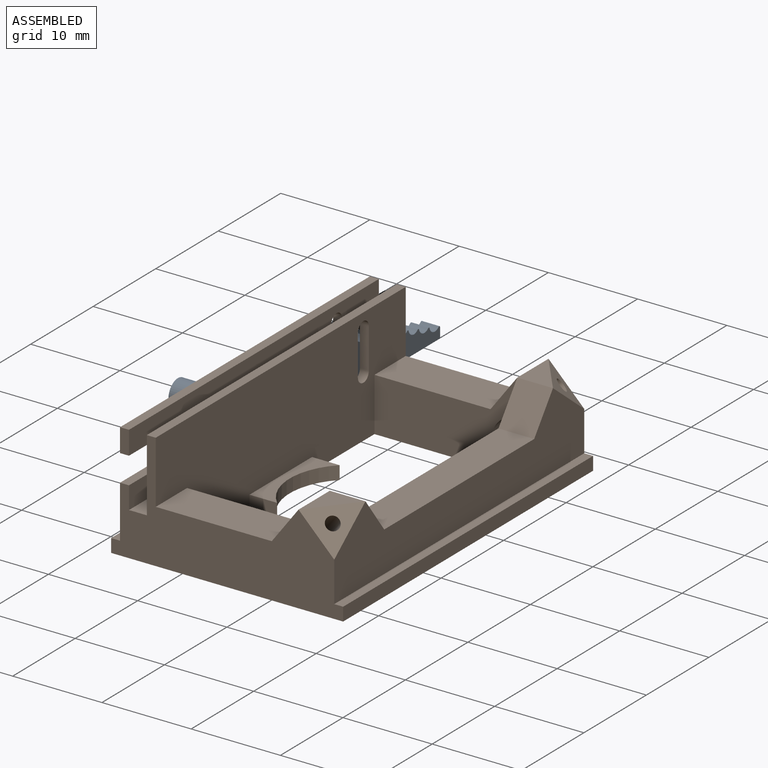
[diagram: assembled view]
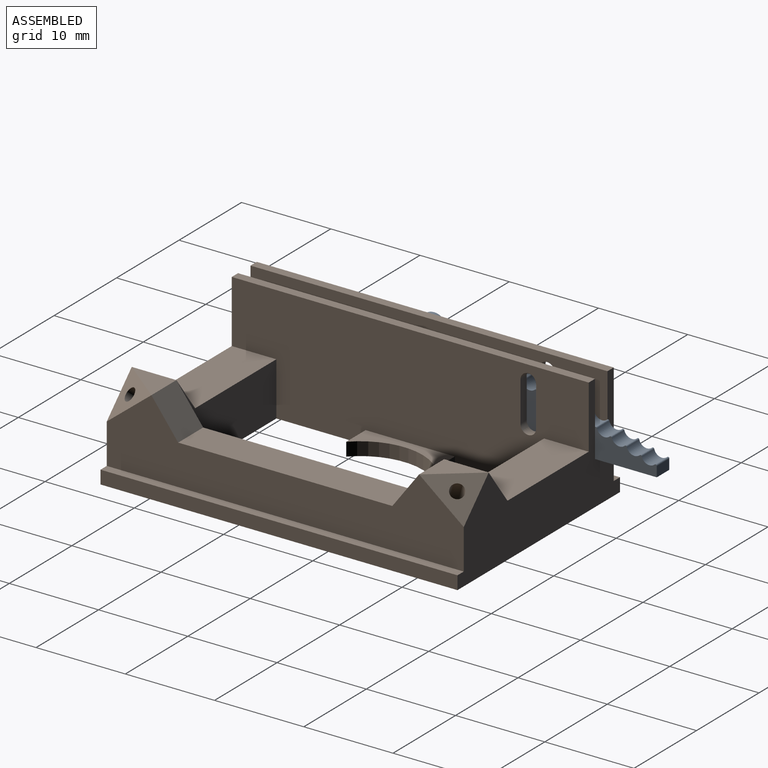
[diagram: assembled view, second angle]
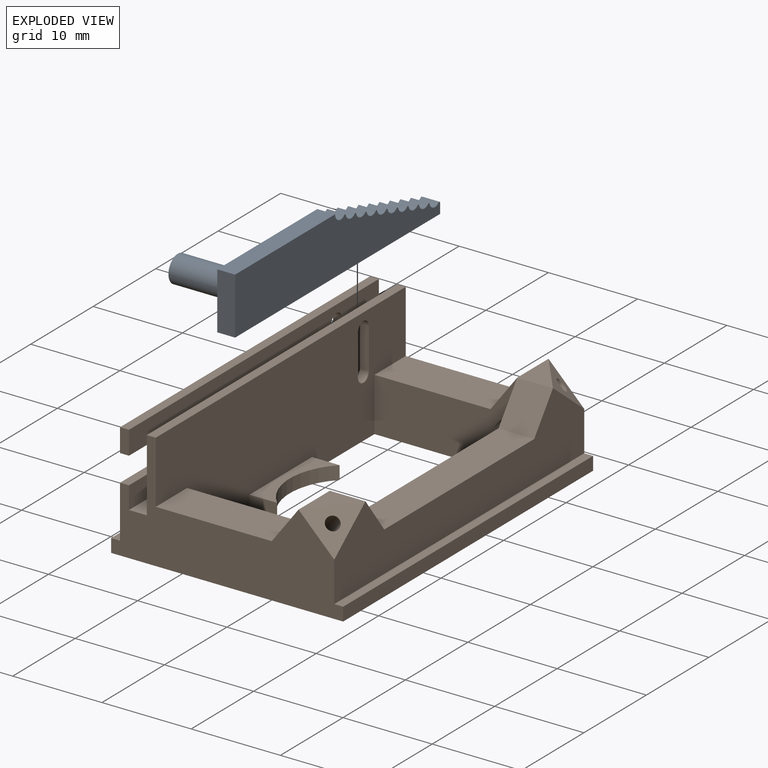
[diagram: exploded view]
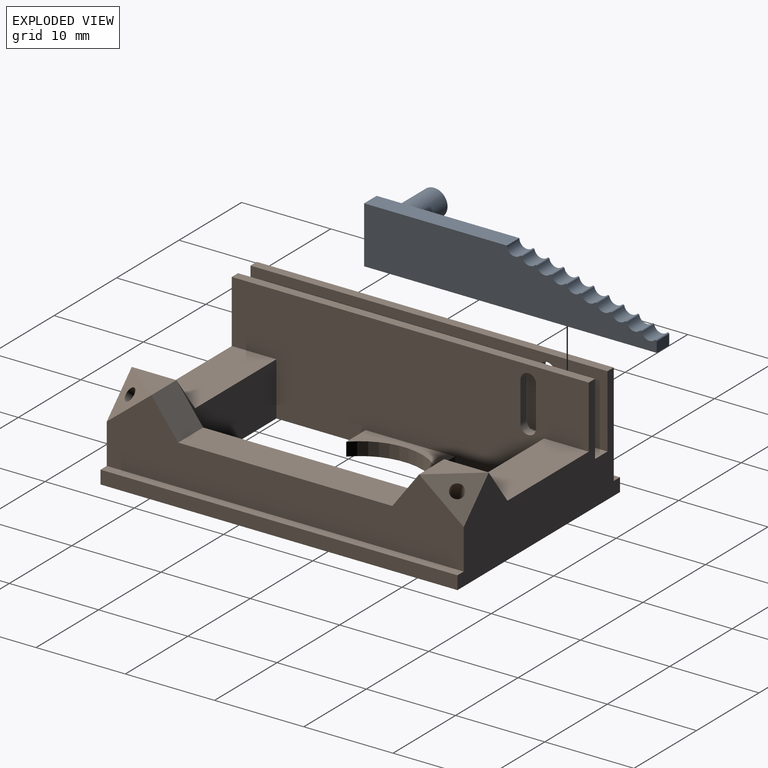
[diagram: exploded view, second angle]
ASSEMBLY  parts=2 mates=2
PART A: 28 faces, bbox 32.8x8x6.4 mm
  f0: plane 32.8x2mm, normal (0,0,-1), area 65.6mm2, adj f1,f23,f24,f25
  f1: plane 6.38x2mm, normal (1,0,0), area 12.8mm2, adj f0,f2,f24,f25
  f2: plane 16x2mm, normal (0,0,1), area 32mm2, adj f1,f3,f24,f25
  f3: cylinder r=0.88mm len=2mm, axis (0,1,0), area 4.1mm2, adj f2,f4,f24,f25
  f4: cylinder r=0.14mm len=2mm, axis (0,1,0), area 0.6mm2, adj f3,f5,f24,f25
  f5: cylinder r=0.88mm len=2mm, axis (0,1,0), area 3.7mm2, adj f4,f6,f24,f25
  f6: cylinder r=0.14mm len=2mm, axis (0,1,0), area 0.6mm2, adj f5,f7,f24,f25
  f7: cylinder r=0.88mm len=2mm, axis (0,1,0), area 3.7mm2, adj f6,f8,f24,f25
  f8: cylinder r=0.14mm len=2mm, axis (0,1,0), area 0.6mm2, adj f7,f9,f24,f25
  f9: cylinder r=0.88mm len=2mm, axis (0,1,0), area 3.7mm2, adj f8,f10,f24,f25
  f10: cylinder r=0.14mm len=2mm, axis (0,1,0), area 0.6mm2, adj f9,f11,f24,f25
  f11: cylinder r=0.88mm len=2mm, axis (0,1,0), area 3.7mm2, adj f10,f12,f24,f25
  f12: cylinder r=0.14mm len=2mm, axis (0,1,0), area 0.6mm2, adj f11,f13,f24,f25
  f13: cylinder r=0.88mm len=2mm, axis (0,1,0), area 3.7mm2, adj f12,f14,f24,f25
  f14: cylinder r=0.14mm len=2mm, axis (0,1,0), area 0.6mm2, adj f13,f15,f24,f25
  f15: cylinder r=0.88mm len=2mm, axis (0,1,0), area 3.7mm2, adj f14,f16,f24,f25
  f16: cylinder r=0.14mm len=2mm, axis (0,1,0), area 0.6mm2, adj f15,f17,f24,f25
  f17: cylinder r=0.88mm len=2mm, axis (0,1,0), area 3.7mm2, adj f16,f18,f24,f25
  f18: cylinder r=0.14mm len=2mm, axis (0,1,0), area 0.6mm2, adj f17,f19,f24,f25
  f19: cylinder r=0.88mm len=2mm, axis (0,1,0), area 3.7mm2, adj f18,f20,f24,f25
  f20: cylinder r=0.14mm len=2mm, axis (0,1,0), area 0.6mm2, adj f19,f21,f24,f25
  f21: cylinder r=0.88mm len=2mm, axis (0,1,0), area 3.7mm2, adj f20,f22,f24,f25
  f22: cylinder r=0.14mm len=2mm, axis (0,1,0), area 0.6mm2, adj f21,f23,f24,f25
  f23: plane 2x1.14mm, normal (-1,0,0), area 2.3mm2, adj f0,f22,f24,f25
  f24: plane 32.8x6.38mm, normal (0,-1,0), area 152.1mm2, adj f0,f1,f2,f3,f4,f5,f6,f7
  f25: plane 32.8x6.38mm, normal (0,1,0), area 159.1mm2, adj f0,f1,f2,f3,f4,f5,f6,f7
  f26: cylinder r=1.5mm len=6mm, axis (0,1,0), area 56.5mm2, adj f24,f27
  f27: plane 3x3mm, normal (0,-1,0), area 7.1mm2, adj f26
PART B: 51 faces, bbox 26.6x40.6x13.6 mm
  f0: plane 40x8.5mm, normal (1,0,0), area 212mm2, adj f3,f7,f9,f21,f44,f45,f48,f49
  f1: plane 5x4mm, normal (0,0,1), area 10mm2, adj f47,f48,f49
  f2: plane 13x5mm, normal (0,0,1), area 65mm2, adj f13,f19,f21,f47
  f3: plane 24x4mm, normal (0,0,1), area 96mm2, adj f0,f17,f44,f48
  f4: plane 2.63x1mm, normal (0,-1,0), area 2.6mm2, adj f26,f27,f28,f39
  f5: plane 10x3.1mm, normal (0,0,1), area 16.5mm2, adj f14,f15,f16,f17
  f6: plane 40x1mm, normal (0,0,1), area 40mm2, adj f8,f9,f21,f26
  f7: plane 40x1mm, normal (0,0,1), area 40mm2, adj f0,f9,f10,f21
  f8: plane 40x1.5mm, normal (-1,0,0), area 60mm2, adj f6,f9,f21,f23
  f9: plane 26x13mm, normal (0,-1,0), area 167.1mm2, adj f0,f6,f7,f8,f10,f19,f23,f24
  f10: plane 40x1.5mm, normal (1,0,0), area 60mm2, adj f7,f9,f21,f23
  f11: cylinder r=7mm len=10mm, axis (0,0,-1), area 16.7mm2, adj f12,f20,f22,f23
  f12: plane 3.1x1.5mm, normal (0,1,0), area 4.7mm2, adj f11,f19,f22,f23
  f13: plane 16.56x10.56mm, normal (0,-1,0), area 98.4mm2, adj f2,f17,f19,f23,f47,f50
  f14: plane 3.1x1.5mm, normal (0,1,0), area 4.7mm2, adj f5,f15,f17,f23
  f15: cylinder r=7mm len=10mm, axis (0,0,-1), area 16.7mm2, adj f5,f14,f16,f23
  f16: plane 3.1x1.5mm, normal (0,-1,0), area 4.7mm2, adj f5,f15,f17,f23
  f17: plane 30x10mm, normal (-1,0,0), area 177mm2, adj f3,f5,f13,f14,f16,f18,f23,f44
  f18: plane 16.56x10.56mm, normal (0,1,0), area 98.4mm2, adj f17,f19,f23,f29,f43,f46
  f19: plane 40x13mm, normal (1,0,0), area 434.7mm2, adj f2,f9,f12,f13,f18,f20,f21,f22
  f20: plane 3.1x1.5mm, normal (0,-1,0), area 4.7mm2, adj f11,f19,f22,f23
  f21: plane 26x13mm, normal (0,1,0), area 172.8mm2, adj f0,f2,f6,f7,f8,f10,f19,f23
  f22: plane 10x3.1mm, normal (0,0,1), area 16.5mm2, adj f11,f12,f19,f20
  f23: plane 40x26mm, normal (0,0,-1), area 593mm2, adj f8,f9,f10,f11,f12,f13,f14,f15
  f24: plane 40x8.13mm, normal (-1,0,0), area 314.7mm2, adj f9,f21,f25,f34,f35,f36,f37,f38
  f25: plane 40x1mm, normal (0,0,1), area 40mm2, adj f9,f19,f21,f24
  f26: plane 40x11.5mm, normal (-1,0,0), area 390.4mm2, adj f4,f6,f9,f21,f28,f30,f31,f32
  f27: plane 40x8.13mm, normal (1,0,0), area 255.4mm2, adj f4,f9,f21,f28,f30,f31,f32,f33
  f28: plane 40x1mm, normal (0,0,1), area 40mm2, adj f4,f21,f26,f27
  f29: plane 13x5mm, normal (0,0,1), area 65mm2, adj f9,f18,f19,f43
  f30: cylinder r=0.88mm len=1.75mm, axis (-1,0,0), area 2.7mm2, adj f26,f27,f31,f33
  f31: plane 4.5x1mm, normal (0,1,0), area 4.5mm2, adj f26,f27,f30,f32
  f32: cylinder r=0.88mm len=1.75mm, axis (-1,0,0), area 2.7mm2, adj f26,f27,f31,f33
  f33: plane 4.5x1mm, normal (0,-1,0), area 4.5mm2, adj f26,f27,f30,f32
  f34: plane 4.5x1mm, normal (0,-1,0), area 4.5mm2, adj f19,f24,f35,f37
  f35: cylinder r=0.88mm len=1.75mm, axis (-1,0,0), area 2.7mm2, adj f19,f24,f34,f36
  f36: plane 4.5x1mm, normal (0,1,0), area 4.5mm2, adj f19,f24,f35,f37
  f37: cylinder r=0.88mm len=1.75mm, axis (-1,0,0), area 2.7mm2, adj f19,f24,f34,f36
  f38: plane 40x2mm, normal (0,0,1), area 80mm2, adj f9,f21,f24,f27
  f39: plane 18.6x1mm, normal (0,0,-1), area 18.6mm2, adj f4,f26,f27,f40
  f40: cylinder r=1.5mm len=3mm, axis (-1,0,0), area 4.7mm2, adj f26,f27,f39,f41
  f41: plane 18.6x1mm, normal (0,0,1), area 18.6mm2, adj f9,f26,f27,f40
  f42: plane 5x4mm, normal (0,0,1), area 10mm2, adj f43,f44,f45
  f43: plane 5x4mm, normal (-0.8,0,0.6), area 25mm2, adj f9,f18,f29,f42
  f44: plane 4x4mm, normal (0,0.8,0.6), area 20mm2, adj f0,f3,f17,f42
  f45: plane 5x4mm, normal (0.62,-0.49,0.62), area 14.5mm2, adj f0,f9,f42,f46
  f46: cylinder r=0.75mm len=6.17mm, axis (0.62,-0.49,0.62), area 32.1mm2, adj f18,f45
  f47: plane 5x4mm, normal (-0.8,0,0.6), area 25mm2, adj f1,f2,f13,f21
  f48: plane 4x4mm, normal (0,-0.8,0.6), area 20mm2, adj f0,f1,f3,f17
  f49: plane 5x4mm, normal (0.62,0.49,0.62), area 14.5mm2, adj f0,f1,f21,f50
  f50: cylinder r=0.75mm len=6.17mm, axis (0.62,0.49,0.62), area 32.1mm2, adj f13,f49
PLACE A rot(axis=(0,0,-1),90deg) t=(-2.89,1.23,-33.7)mm
PLACE B t=(6.11,-24.4,-45.08)mm
MATE planar B.f24 <-> A.f25  axis (-1,0,0) through (-2.89,-24.84,-36.14)mm
MATE planar B.f38 <-> A.f0  axis (0,0,1) through (-3.89,-24.4,-40.2)mm
